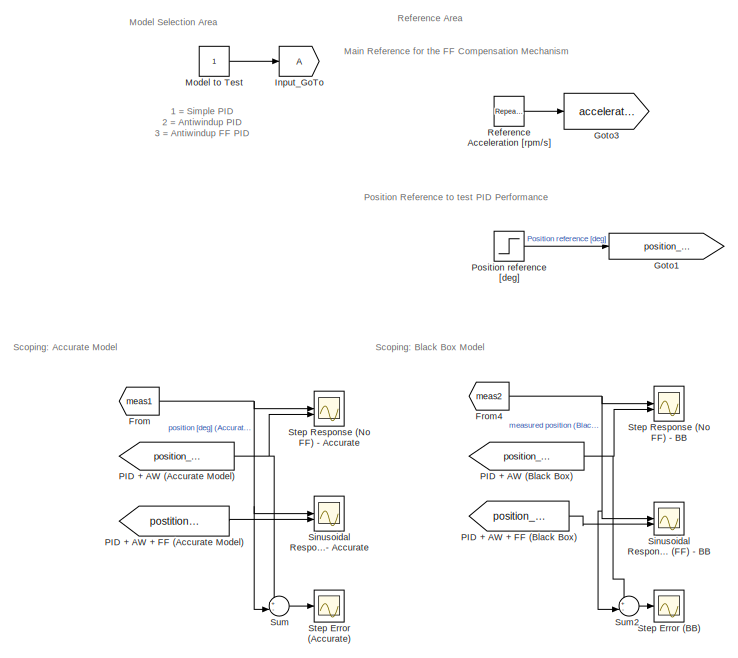
[diagram: root canvas - part 1/3, top left region]
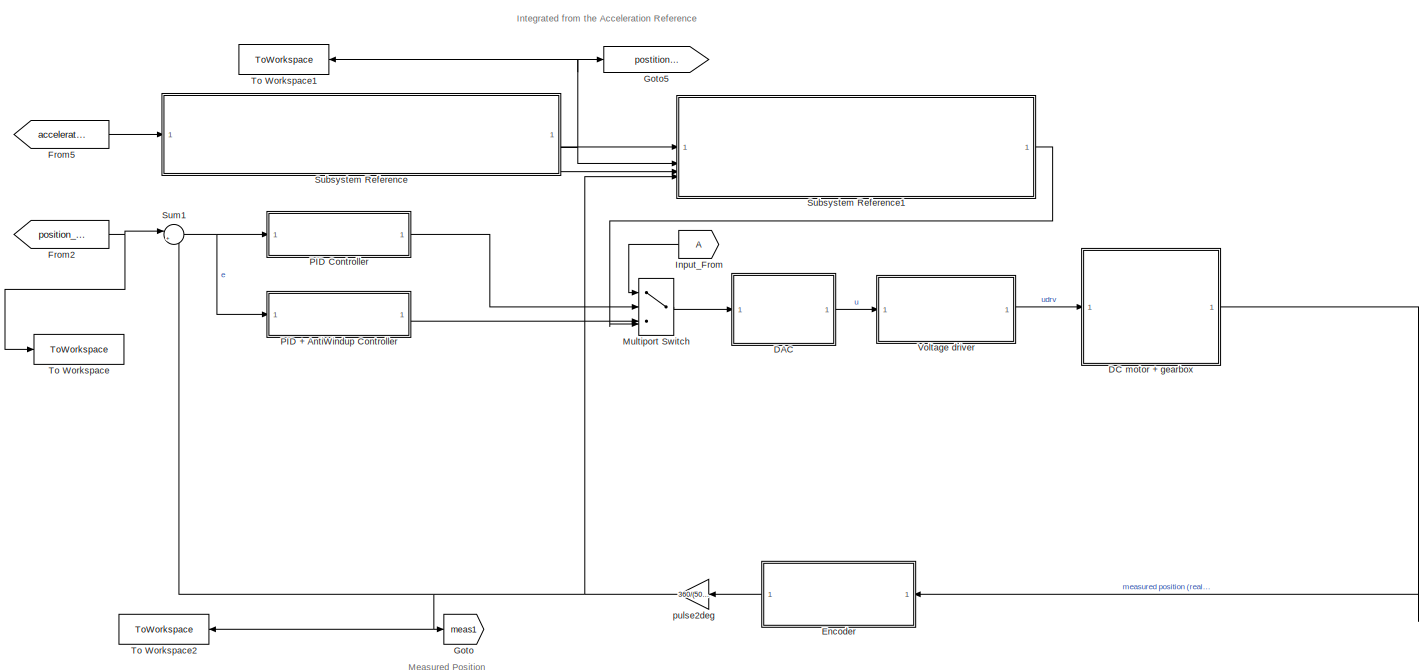
[diagram: root canvas - part 2/3, top right region]
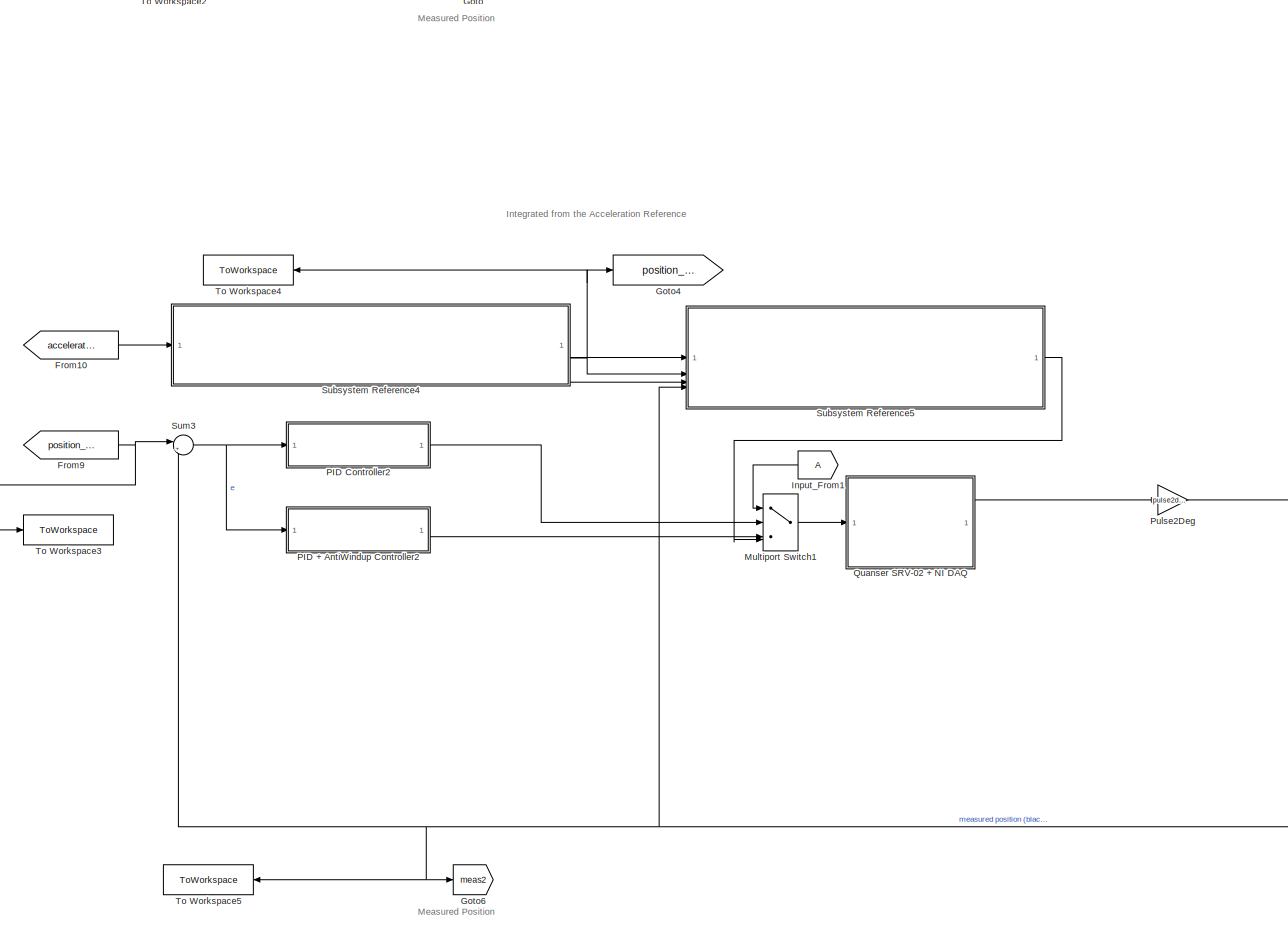
[diagram: root canvas - part 3/3, bottom center region]
MODEL slx_f672ccf4d240
KIND model
CONFIG AbsTol = auto
CONFIG EnableMultiTasking = off
CONFIG FixedStep = auto
CONFIG MaxStep = auto
CONFIG MinStep = auto
CONFIG RelTol = 1e-3
CONFIG SampleTimeConstraint = Unconstrained
CONFIG SolverName = ode45
CONFIG StartTime = 0.0
CONFIG StopTime = 5
BLOCK [SubSystem] DAC
  ReferencedSubsystem = DAC
BLOCK [SubSystem] DC motor + gearbox
  ReferencedSubsystem = DC_motor_and_gearbox
BLOCK [SubSystem] Encoder
  NameLocation = top
  ReferencedSubsystem = Encoder
BLOCK [From] From
  GotoTag = meas1
BLOCK [From] From10
  GotoTag = acceleration_ref
BLOCK [From] From2
  GotoTag = position_ref
BLOCK [From] From4
  GotoTag = meas2
BLOCK [From] From5
  GotoTag = acceleration_ref
BLOCK [From] From9
  GotoTag = position_ref
BLOCK [Goto] Goto
  GotoTag = meas1
BLOCK [Goto] Goto1
  GotoTag = position_ref
BLOCK [Goto] Goto3
  GotoTag = acceleration_ref
BLOCK [Goto] Goto4
  GotoTag = position_ref2
BLOCK [Goto] Goto5
  GotoTag = postition_ref1
BLOCK [Goto] Goto6
  GotoTag = meas2
BLOCK [From] Input_From
BLOCK [From] Input_From1
BLOCK [Goto] Input_GoTo
BLOCK [Constant] Model to Test
BLOCK [MultiPortSwitch] Multiport Switch
  InputSameDT = off
  SaturateOnIntegerOverflow = off
BLOCK [MultiPortSwitch] Multiport Switch1
  InputSameDT = off
  SaturateOnIntegerOverflow = off
BLOCK [From] PID + AW (Accurate Model)
  GotoTag = position_ref
BLOCK [From] PID + AW (Black Box)
  GotoTag = position_ref
BLOCK [From] PID + AW + FF (Accurate Model) 
  GotoTag = postition_ref1
BLOCK [From] PID + AW + FF (Black Box)
  GotoTag = position_ref2
BLOCK [SubSystem] PID + AntiWindup Controller
  ReferencedSubsystem = PIDantiwindup_sub
BLOCK [SubSystem] PID + AntiWindup Controller2
  ReferencedSubsystem = PIDantiwindup_sub
BLOCK [SubSystem] PID Controller
  ReferencedSubsystem = PID_Model
BLOCK [SubSystem] PID Controller2
  ReferencedSubsystem = PID_Model
BLOCK [Step] Position reference [deg]
  After = 90
  SampleTime = 0
  Time = 0
BLOCK [Gain] Pulse2Deg
  Gain = pulse2deg
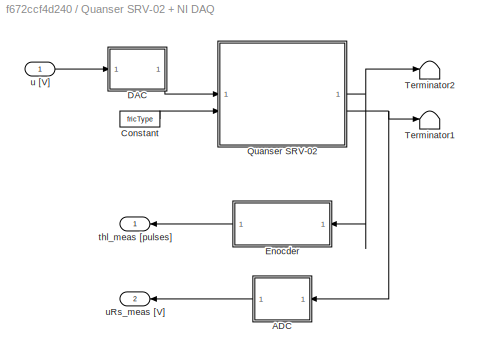
BLOCK [SubSystem] Quanser SRV-02 + NI DAQ
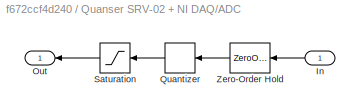
BLOCK [SubSystem] Quanser SRV-02 + NI DAQ/ADC
BLOCK [Inport] Quanser SRV-02 + NI DAQ/ADC/In
BLOCK [Outport] Quanser SRV-02 + NI DAQ/ADC/Out
BLOCK [Quantizer] Quanser SRV-02 + NI DAQ/ADC/Quantizer
  QuantizationInterval = daq.adc.q
BLOCK [Saturate] Quanser SRV-02 + NI DAQ/ADC/Saturation
  LowerLimit = -daq.adc.fs
  UpperLimit = daq.adc.fs
BLOCK [ZeroOrderHold] Quanser SRV-02 + NI DAQ/ADC/Zero-Order Hold
  SampleTime = Ts
BLOCK [Constant] Quanser SRV-02 + NI DAQ/Constant
  Value = fricType
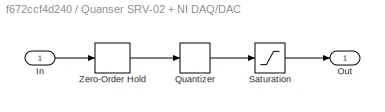
BLOCK [SubSystem] Quanser SRV-02 + NI DAQ/DAC
BLOCK [Inport] Quanser SRV-02 + NI DAQ/DAC/In
BLOCK [Outport] Quanser SRV-02 + NI DAQ/DAC/Out
BLOCK [Quantizer] Quanser SRV-02 + NI DAQ/DAC/Quantizer
  QuantizationInterval = daq.dac.q
BLOCK [Saturate] Quanser SRV-02 + NI DAQ/DAC/Saturation
  LowerLimit = -daq.dac.fs
  UpperLimit = daq.dac.fs
BLOCK [ZeroOrderHold] Quanser SRV-02 + NI DAQ/DAC/Zero-Order Hold
  SampleTime = Ts
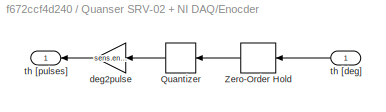
BLOCK [SubSystem] Quanser SRV-02 + NI DAQ/Enocder
BLOCK [Quantizer] Quanser SRV-02 + NI DAQ/Enocder/Quantizer
  QuantizationInterval = sens.enc.pulse2deg
BLOCK [ZeroOrderHold] Quanser SRV-02 + NI DAQ/Enocder/Zero-Order Hold
  SampleTime = Ts
BLOCK [Gain] Quanser SRV-02 + NI DAQ/Enocder/deg2pulse
  Gain = sens.enc.deg2pulse
BLOCK [Inport] Quanser SRV-02 + NI DAQ/Enocder/th [deg]
BLOCK [Outport] Quanser SRV-02 + NI DAQ/Enocder/th [pulses]
BLOCK [ModelReference] Quanser SRV-02 + NI DAQ/Quanser SRV-02
  CopyOfModelProtected = on
  ModelNameDialog = SRV02IL_win64.slxp
  ModelReferenceVersion = 1.44
BLOCK [Terminator] Quanser SRV-02 + NI DAQ/Terminator1
BLOCK [Terminator] Quanser SRV-02 + NI DAQ/Terminator2
BLOCK [Outport] Quanser SRV-02 + NI DAQ/thl_meas [pulses]
BLOCK [Inport] Quanser SRV-02 + NI DAQ/u [V]
BLOCK [Outport] Quanser SRV-02 + NI DAQ/uRs_meas [V]
  Port = 2
BLOCK [Reference] Reference Acceleration [rpm//s]  REF=simulink/Sources/Repeating
Sequence
Stair
  SourceBlock = simulink/Sources/Repeating\nSequence\nStair
  SourceType = Repeating Sequence Stair
BLOCK [Scope] Sinusoidal Response (FF) - Accurate
  Floating = off
  NumInputPorts = 2
  ScopeSpecificationString = Simulink.scopes.TimeScopeBlockCfg('CurrentConfiguration', extmgr.ConfigurationSet(extmgr.Configuration('Core','General UI',true),extmgr.Configuration('Core','Source UI',true),extmgr.Configuration('Sources','WiredSimulink',true,'DataLoggingVariableName','ScopeData1'),extmgr.Configuration('Visuals','Time Domain',true,'SerializedDisplays',{struct('MinYLimReal','-1947.9375','MaxYLimReal','3432.0375','...<+1898ch>
BLOCK [Scope] Sinusoidal Response (FF) - BB
  Floating = off
  NumInputPorts = 2
  ScopeSpecificationString = Simulink.scopes.TimeScopeBlockCfg('CurrentConfiguration', extmgr.ConfigurationSet(extmgr.Configuration('Core','General UI',true),extmgr.Configuration('Core','Source UI',true),extmgr.Configuration('Sources','WiredSimulink',true,'DataLoggingVariableName','ScopeData2'),extmgr.Configuration('Visuals','Time Domain',true,'SerializedDisplays',{struct('MinYLimReal','1261.07873','MaxYLimReal','2327.46435',...<+1578ch>
BLOCK [Scope] Step Error (Accurate)
  Floating = off
  NumInputPorts = 1
  ScopeSpecificationString = Simulink.scopes.TimeScopeBlockCfg('CurrentConfiguration', extmgr.ConfigurationSet(extmgr.Configuration('Core','General UI',true),extmgr.Configuration('Core','Source UI',true),extmgr.Configuration('Sources','WiredSimulink',true,'DataLoggingVariableName','ScopeData3'),extmgr.Configuration('Visuals','Time Domain',true,'SerializedDisplays',{struct('MinYLimReal','-2674.5975','MaxYLimReal','694.7775','Y...<+1465ch>
BLOCK [Scope] Step Error (BB)
  Floating = off
  NumInputPorts = 1
  ScopeSpecificationString = Simulink.scopes.TimeScopeBlockCfg('CurrentConfiguration', extmgr.ConfigurationSet(extmgr.Configuration('Core','General UI',true),extmgr.Configuration('Core','Source UI',true),extmgr.Configuration('Sources','WiredSimulink',true,'DataLoggingVariableName','ScopeData4'),extmgr.Configuration('Visuals','Time Domain',true,'SerializedDisplays',{struct('MinYLimReal','-2674.5525','MaxYLimReal','694.3725','Y...<+1466ch>
BLOCK [Scope] Step Response (No FF) - Accurate
  Floating = off
  NumInputPorts = 2
  ScopeSpecificationString = Simulink.scopes.TimeScopeBlockCfg('CurrentConfiguration', extmgr.ConfigurationSet(extmgr.Configuration('Core','General UI',true),extmgr.Configuration('Core','Source UI',true),extmgr.Configuration('Sources','WiredSimulink',true),extmgr.Configuration('Visuals','Time Domain',true,'SerializedDisplays',{struct('MinYLimReal','-127.31317','MaxYLimReal','405.16014','YLabelReal','','MinYLimMag',' 0.00000',...<+1859ch>
BLOCK [Scope] Step Response (No FF) - BB
  Floating = off
  NumInputPorts = 2
  ScopeSpecificationString = Simulink.scopes.TimeScopeBlockCfg('CurrentConfiguration', extmgr.ConfigurationSet(extmgr.Configuration('Core','General UI',true),extmgr.Configuration('Core','Source UI',true),extmgr.Configuration('Sources','WiredSimulink',true,'DataLoggingVariableName','ScopeData1'),extmgr.Configuration('Visuals','Time Domain',true,'SerializedDisplays',{struct('MinYLimReal','-45.00000','MaxYLimReal','405.00000','Y...<+1901ch>
BLOCK [SubSystem] Subsystem Reference
  ReferencedSubsystem = Feedforward_input_interface
BLOCK [SubSystem] Subsystem Reference1
  ReferencedSubsystem = FeedforwardcompensatorPID
BLOCK [SubSystem] Subsystem Reference4
  ReferencedSubsystem = Feedforward_input_interface
BLOCK [SubSystem] Subsystem Reference5
  ReferencedSubsystem = FeedforwardcompensatorPID
BLOCK [Sum] Sum
  Inputs = +-|
BLOCK [Sum] Sum1
  Inputs = |+-
BLOCK [Sum] Sum2
  Inputs = +-|
BLOCK [Sum] Sum3
  Inputs = |+-
BLOCK [ToWorkspace] To Workspace
  FixptAsFi = on
  MaxDataPoints = inf
  SampleTime = -1
  SaveFormat = Structure With Time
  VariableName = pos_PID_acc
BLOCK [ToWorkspace] To Workspace1
  FixptAsFi = on
  MaxDataPoints = inf
  SampleTime = -1
  SaveFormat = Structure With Time
  VariableName = pos_PID_FF_acc
BLOCK [ToWorkspace] To Workspace2
  FixptAsFi = on
  MaxDataPoints = inf
  SampleTime = -1
  SaveFormat = Structure With Time
  VariableName = pos_meas_acc
BLOCK [ToWorkspace] To Workspace3
  FixptAsFi = on
  MaxDataPoints = inf
  SampleTime = -1
  SaveFormat = Structure With Time
  VariableName = pos_PID_bb
BLOCK [ToWorkspace] To Workspace4
  FixptAsFi = on
  MaxDataPoints = inf
  SampleTime = -1
  SaveFormat = Structure With Time
  VariableName = pos_PID_FF_bb
BLOCK [ToWorkspace] To Workspace5
  FixptAsFi = on
  MaxDataPoints = inf
  SampleTime = -1
  SaveFormat = Structure With Time
  VariableName = pos_meas_bb
BLOCK [SubSystem] Voltage driver
  ReferencedSubsystem = Voltage_driver
BLOCK [Gain] pulse2deg
  Gain = 360/(500*4)
  NameLocation = top
ANNOTATION (root): 1 = Simple PID 2 = Antiwindup PID 3 = Antiwindup FF PID
ANNOTATION (root): Integrated from the Acceleration Reference
ANNOTATION (root): Main Reference for the FF Compensation Mechanism
ANNOTATION (root): Measured Position
ANNOTATION (root): Model Selection Area
ANNOTATION (root): Position Reference to test PID Performance
ANNOTATION (root): Reference Area
ANNOTATION (root): Scoping: Accurate Model
ANNOTATION (root): Scoping: Black Box Model
LINE DAC:1 -> Voltage driver:1
LINE DC motor + gearbox:1 -> Encoder:1
LINE Encoder:1 -> pulse2deg:1
LINE From10:1 -> Subsystem Reference4:1
NET From2:1 -> Sum1:1, To Workspace:1
NET From4:1 -> Sinusoidal Response (FF) - BB:1, Step Response (No FF) - BB:1, Sum2:2
LINE From5:1 -> Subsystem Reference:1
NET From9:1 -> Sum3:1, To Workspace3:1
NET From:1 -> Sinusoidal Response (FF) - Accurate:1, Step Response (No FF) - Accurate:1, Sum:2
LINE Input_From1:1 -> Multiport Switch1:1
LINE Input_From:1 -> Multiport Switch:1
LINE Model to Test:1 -> Input_GoTo:1
LINE Multiport Switch1:1 -> Quanser SRV-02 + NI DAQ:1
LINE Multiport Switch:1 -> DAC:1
NET PID + AW (Accurate Model):1 -> Step Response (No FF) - Accurate:2, Sum:1
NET PID + AW (Black Box):1 -> Step Response (No FF) - BB:2, Sum2:1
LINE PID + AW + FF (Accurate Model) :1 -> Sinusoidal Response (FF) - Accurate:2
LINE PID + AW + FF (Black Box):1 -> Sinusoidal Response (FF) - BB:2
LINE PID + AntiWindup Controller2:1 -> Multiport Switch1:3
LINE PID + AntiWindup Controller:1 -> Multiport Switch:3
LINE PID Controller2:1 -> Multiport Switch1:2
LINE PID Controller:1 -> Multiport Switch:2
LINE Position reference [deg]:1 -> Goto1:1
NET Pulse2Deg:1 -> Goto6:1, Subsystem Reference5:4, Sum3:2, To Workspace5:1
LINE Quanser SRV-02 + NI DAQ/ADC/In:1 -> Quanser SRV-02 + NI DAQ/ADC/Zero-Order Hold:1
LINE Quanser SRV-02 + NI DAQ/ADC/Quantizer:1 -> Quanser SRV-02 + NI DAQ/ADC/Saturation:1
LINE Quanser SRV-02 + NI DAQ/ADC/Saturation:1 -> Quanser SRV-02 + NI DAQ/ADC/Out:1
LINE Quanser SRV-02 + NI DAQ/ADC/Zero-Order Hold:1 -> Quanser SRV-02 + NI DAQ/ADC/Quantizer:1
LINE Quanser SRV-02 + NI DAQ/ADC:1 -> Quanser SRV-02 + NI DAQ/uRs_meas [V]:1
LINE Quanser SRV-02 + NI DAQ/Constant:1 -> Quanser SRV-02 + NI DAQ/Quanser SRV-02:2
LINE Quanser SRV-02 + NI DAQ/DAC/In:1 -> Quanser SRV-02 + NI DAQ/DAC/Zero-Order Hold:1
LINE Quanser SRV-02 + NI DAQ/DAC/Quantizer:1 -> Quanser SRV-02 + NI DAQ/DAC/Saturation:1
LINE Quanser SRV-02 + NI DAQ/DAC/Saturation:1 -> Quanser SRV-02 + NI DAQ/DAC/Out:1
LINE Quanser SRV-02 + NI DAQ/DAC/Zero-Order Hold:1 -> Quanser SRV-02 + NI DAQ/DAC/Quantizer:1
LINE Quanser SRV-02 + NI DAQ/DAC:1 -> Quanser SRV-02 + NI DAQ/Quanser SRV-02:1
LINE Quanser SRV-02 + NI DAQ/Enocder/Quantizer:1 -> Quanser SRV-02 + NI DAQ/Enocder/deg2pulse:1
LINE Quanser SRV-02 + NI DAQ/Enocder/Zero-Order Hold:1 -> Quanser SRV-02 + NI DAQ/Enocder/Quantizer:1
LINE Quanser SRV-02 + NI DAQ/Enocder/deg2pulse:1 -> Quanser SRV-02 + NI DAQ/Enocder/th [pulses]:1
LINE Quanser SRV-02 + NI DAQ/Enocder/th [deg]:1 -> Quanser SRV-02 + NI DAQ/Enocder/Zero-Order Hold:1
LINE Quanser SRV-02 + NI DAQ/Enocder:1 -> Quanser SRV-02 + NI DAQ/thl_meas [pulses]:1
NET Quanser SRV-02 + NI DAQ/Quanser SRV-02:1 -> Quanser SRV-02 + NI DAQ/Enocder:1, Quanser SRV-02 + NI DAQ/Terminator2:1
NET Quanser SRV-02 + NI DAQ/Quanser SRV-02:2 -> Quanser SRV-02 + NI DAQ/ADC:1, Quanser SRV-02 + NI DAQ/Terminator1:1
LINE Quanser SRV-02 + NI DAQ/u [V]:1 -> Quanser SRV-02 + NI DAQ/DAC:1
LINE Quanser SRV-02 + NI DAQ:1 -> Pulse2Deg:1
LINE Reference Acceleration [rpm//s]:1 -> Goto3:1
LINE Subsystem Reference1:1 -> Multiport Switch:4
LINE Subsystem Reference4:1 -> Subsystem Reference5:1
NET Subsystem Reference4:2 -> Goto4:1, Subsystem Reference5:2, To Workspace4:1
LINE Subsystem Reference4:3 -> Subsystem Reference5:3
LINE Subsystem Reference5:1 -> Multiport Switch1:4
LINE Subsystem Reference:1 -> Subsystem Reference1:1
NET Subsystem Reference:2 -> Goto5:1, Subsystem Reference1:2, To Workspace1:1
LINE Subsystem Reference:3 -> Subsystem Reference1:3
NET Sum1:1 -> PID + AntiWindup Controller:1, PID Controller:1
LINE Sum2:1 -> Step Error (BB):1
NET Sum3:1 -> PID + AntiWindup Controller2:1, PID Controller2:1
LINE Sum:1 -> Step Error (Accurate):1
LINE Voltage driver:1 -> DC motor + gearbox:1
NET pulse2deg:1 -> Goto:1, Subsystem Reference1:4, Sum1:2, To Workspace2:1
note: NET lines group one-source signal fan-out (src -> all destinations, sorted); 1:1 wires keep LINE
